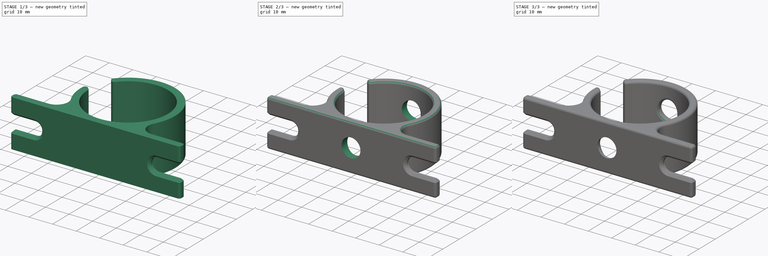
[diagram: build sequence overview — one tinted view per stage of 3, left to right]
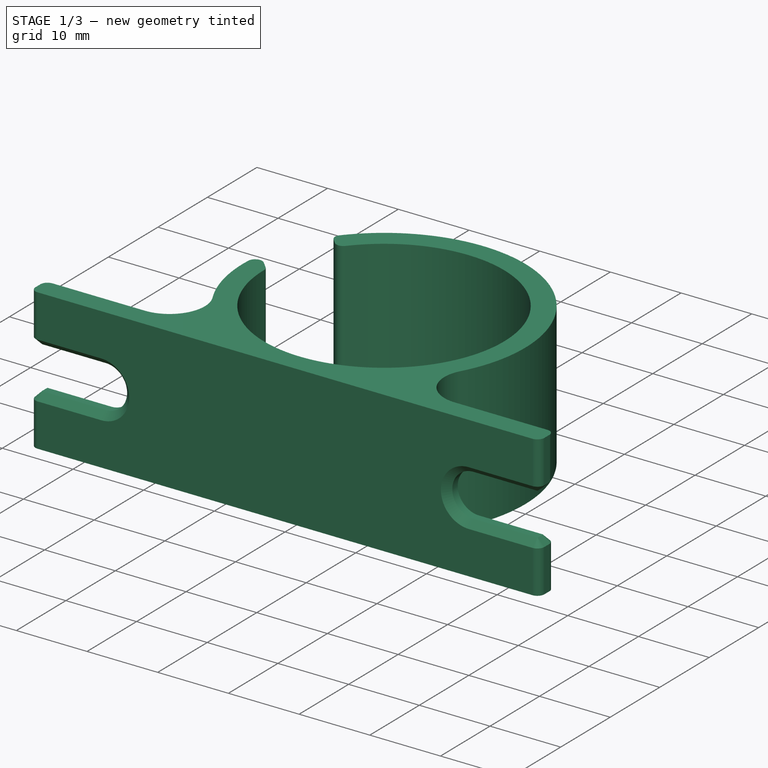
[diagram: stage 1 of 3 — iso view after this stage's code; geometry added in this stage tinted green]
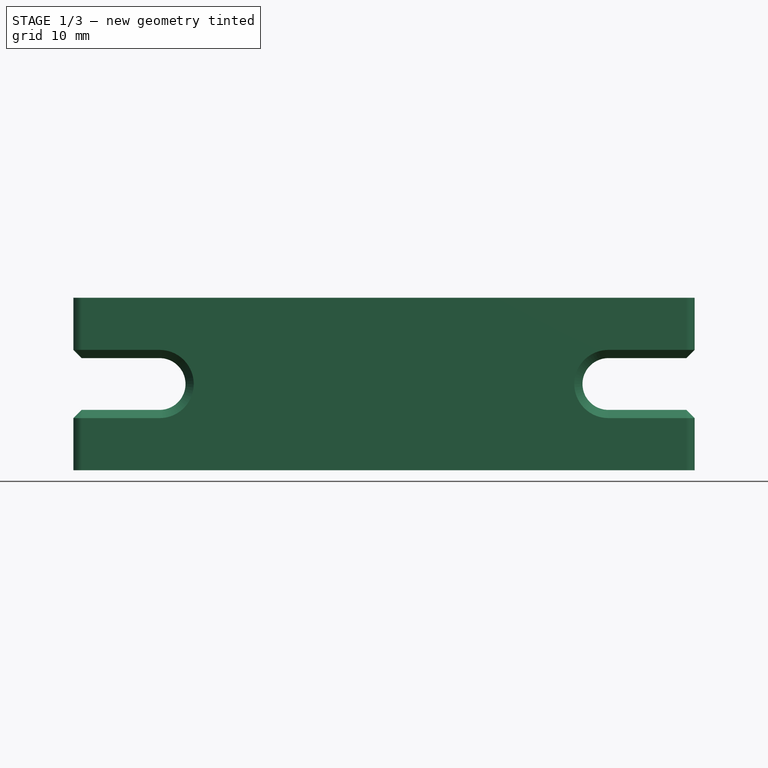
[diagram: stage 1 of 3 — front view after this stage's code; geometry added in this stage tinted green]
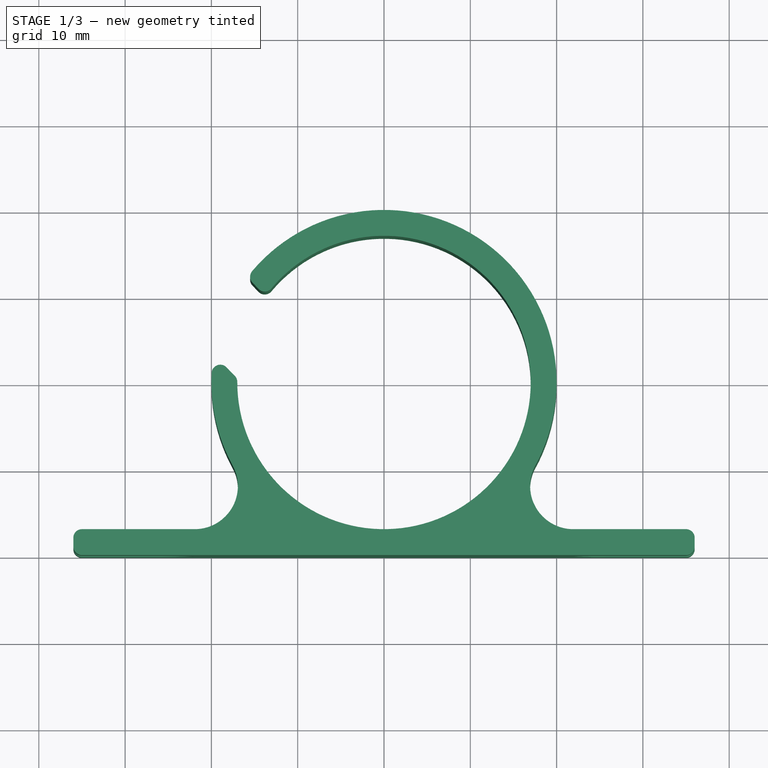
[diagram: stage 1 of 3 — top view after this stage's code; geometry added in this stage tinted green]
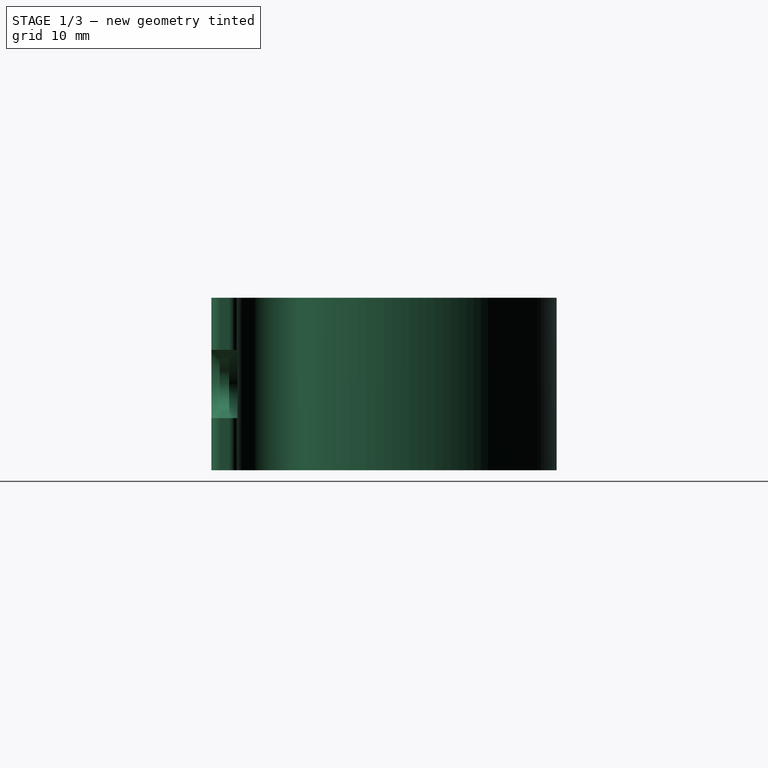
[diagram: stage 1 of 3 — right view after this stage's code; geometry added in this stage tinted green]
FCSTD DOCUMENT  (FreeCAD 0.21R)
Label: passe-cable
License: All rights reserved
LicenseURL: http://en.wikipedia.org/wiki/All_rights_reserved
objects: Sketcher::SketchObject×3, PartDesign::Fillet×3, PartDesign::Pocket×2, PartDesign::Chamfer×2, PartDesign::Pad×1, PartDesign::Body×1
note: 20 computed .brp shape members not serialized (recipe doc carries the construction recipe); baked Part::Feature solids carry a one-line shape summary decoded from their .brp

FEATURE [Sketcher::SketchObject] Sketch
  FullyConstrained = false
  sketch-geometry (20):
    g0: ArcOfCircle CenterX=-35 CenterY=1 CenterZ=0 NormalX=0 NormalY=0 NormalZ=1 AngleXU=0 Radius=1 StartAngle=3.14159 EndAngle=4.71239
    g1: LineSegment StartX=-35 StartY=0 StartZ=0 EndX=35 EndY=0 EndZ=0
    g2: ArcOfCircle CenterX=35 CenterY=1 CenterZ=0 NormalX=0 NormalY=0 NormalZ=1 AngleXU=0 Radius=1 StartAngle=4.71239 EndAngle=6.28319
    g3: ArcOfCircle CenterX=-14.516 CenterY=32.2591 CenterZ=0 NormalX=0 NormalY=0 NormalZ=1 AngleXU=0 Radius=1 StartAngle=2.44029 EndAngle=3.91329
    g4: LineSegment StartX=-14.5318 StartY=30.8414 StartZ=0 EndX=-15.2327 EndY=31.5618 EndZ=0
    g5: ArcOfCircle CenterX=-13.8151 CenterY=31.5388 CenterZ=0 NormalX=0 NormalY=0 NormalZ=1 AngleXU=0 Radius=1 StartAngle=3.91329 EndAngle=5.58733
    g6: ArcOfCircle CenterX=-18.9702 CenterY=21.0632 CenterZ=0 NormalX=0 NormalY=0 NormalZ=1 AngleXU=0 Radius=1 StartAngle=0.7717 EndAngle=3.08561
    g7: ArcOfCircle CenterX=0 CenterY=20 CenterZ=0 NormalX=0 NormalY=0 NormalZ=1 AngleXU=0 Radius=17 StartAngle=3.13793 EndAngle=8.72892
    g8: LineSegment StartX=-17.2832 StartY=20.7632 StartZ=0 EndX=-18.2535 EndY=21.7605 EndZ=0
    g9: ArcOfCircle CenterX=-17.9999 CenterY=20.0659 CenterZ=0 NormalX=0 NormalY=0 NormalZ=1 AngleXU=0 Radius=1 StartAngle=6.27952 EndAngle=7.05489
    g10: LineSegment StartX=36 StartY=1 StartZ=0 EndX=36 EndY=2 EndZ=0
    g11: ArcOfCircle CenterX=35 CenterY=2 CenterZ=0 NormalX=0 NormalY=0 NormalZ=1 AngleXU=0 Radius=1 StartAngle=0 EndAngle=1.5708
    g12: LineSegment StartX=21.9317 StartY=3 StartZ=0 EndX=35 EndY=3 EndZ=0
    g13: ArcOfCircle CenterX=0 CenterY=20 CenterZ=0 NormalX=0 NormalY=0 NormalZ=1 AngleXU=0 Radius=20 StartAngle=5.78253 EndAngle=8.72347
    g14: ArcOfCircle CenterX=21.9317 CenterY=8 CenterZ=0 NormalX=0 NormalY=0 NormalZ=1 AngleXU=0 Radius=5 StartAngle=2.64094 EndAngle=4.71239
    g15: ArcOfCircle CenterX=0 CenterY=20 CenterZ=0 NormalX=0 NormalY=0 NormalZ=1 AngleXU=0 Radius=20 StartAngle=3.08561 EndAngle=3.64225
    g16: ArcOfCircle CenterX=-21.9317 CenterY=8 CenterZ=0 NormalX=0 NormalY=0 NormalZ=1 AngleXU=0 Radius=5 StartAngle=4.71239 EndAngle=6.78384
    g17: LineSegment StartX=-35 StartY=3 StartZ=0 EndX=-21.9317 EndY=3 EndZ=0
    g18: LineSegment StartX=-36 StartY=2 StartZ=0 EndX=-36 EndY=1 EndZ=0
    g19: ArcOfCircle CenterX=-35 CenterY=2 CenterZ=0 NormalX=0 NormalY=0 NormalZ=1 AngleXU=0 Radius=1 StartAngle=1.5708 EndAngle=3.14159
  constraints (20):
    c: Coincident(g0,g18)
    c: Coincident(g18,g19)
    c: Coincident(g0,g1)
    c: Coincident(g17,g19)
    c: Coincident(g16,g17)
    c: Coincident(g6,g15)
    c: Coincident(g6,g8)
    c: Coincident(g15,g16)
    c: Coincident(g8,g9)
    c: Coincident(g7,g9)
    c: Coincident(g3,g13)
    c: Coincident(g3,g4)
    c: Coincident(g4,g5)
    c: Coincident(g5,g7)
    c: Coincident(g13,g14)
    c: Coincident(g12,g14)
    c: Coincident(g1,g2)
    c: Coincident(g11,g12)
    c: Coincident(g2,g10)
    c: Coincident(g10,g11)
FEATURE [PartDesign::Pad] Pad
  Direction = (0,0,1)
  Length = 20
  Length2 = 10
  Profile = -> Sketch
  ReferenceAxis = -> Sketch [N_Axis]
  Type = 0
FEATURE [Sketcher::SketchObject] Sketch001
  ExternalGeometry = -> [Pad]
  FullyConstrained = true
  MapMode = 5
  Placement = pos=(-6e-16,3,0) rot=(0,0.707107,0.707107;3.14159rad)
  Support = -> [Pad]
  sketch-geometry (10):
    g0: ArcOfCircle CenterX=-26 CenterY=10 CenterZ=0 NormalX=0 NormalY=0 NormalZ=1 AngleXU=0 Radius=3 StartAngle=4.71239 EndAngle=7.85398
    g1: ArcOfCircle CenterX=-46 CenterY=10 CenterZ=0 NormalX=0 NormalY=0 NormalZ=1 AngleXU=0 Radius=3 StartAngle=1.5708 EndAngle=4.71239
    g2: LineSegment StartX=-26 StartY=13 StartZ=0 EndX=-46 EndY=13 EndZ=0
    g3: LineSegment StartX=-46 StartY=7 StartZ=0 EndX=-26 EndY=7 EndZ=0
    g4: GeomPoint X=-36 Y=10 Z=0
    g5: GeomPoint X=36 Y=10 Z=0
    g6: ArcOfCircle CenterX=26 CenterY=10 CenterZ=0 NormalX=0 NormalY=0 NormalZ=1 AngleXU=0 Radius=3 StartAngle=1.5708 EndAngle=4.71239
    g7: ArcOfCircle CenterX=46 CenterY=10 CenterZ=0 NormalX=0 NormalY=0 NormalZ=1 AngleXU=0 Radius=3 StartAngle=4.71239 EndAngle=7.85398
    g8: LineSegment StartX=26 StartY=7 StartZ=0 EndX=46 EndY=7 EndZ=0
    g9: LineSegment StartX=46 StartY=13 StartZ=0 EndX=26 EndY=13 EndZ=0
  constraints (22):
    c: Tangent(g0,g2) = -1.5708
    c: Tangent(g2,g1) = -1.5708
    c: Tangent(g1,g3) = -1.5708
    c: Tangent(g3,g0) = -1.5708
    c: Equal(g0,g1)
    c: Horizontal(g2)
    c: Symmetric(g-4,g-4,g4)
    c: Horizontal(g1,g4)
    c: DistanceX(g4,g0) = 10
    c: Distance(g1,g4) = 10
    c: Radius(g0) = 3
    c: Symmetric(g-3,g-3,g5)
    c: Tangent(g6,g8) = -1.5708
    c: Tangent(g8,g7) = -1.5708
    c: Tangent(g7,g9) = -1.5708
    c: Tangent(g9,g6) = -1.5708
    c: Equal(g6,g7)
    c: Horizontal(g6,g5)
    c: Horizontal(g5,g7)
    c: Distance(g6,g5) = 10
    c: Distance(g7,g5) = 10
    c: Radius(g6) = 3
FEATURE [PartDesign::Pocket] Pocket
  BaseFeature = -> Pad
  Direction = (2e-16,-1,2e-16)
  Length = 5
  Length2 = 5
  Profile = -> Sketch001
  ReferenceAxis = -> Sketch001 [N_Axis]
  Type = 1
FEATURE [PartDesign::Chamfer] Chamfer
  Angle = 45
  Base = -> Pocket [Face29,Face26]
  BaseFeature = -> Pocket
  ChamferType = 0
  FlipDirection = false
  Size = 0.95
  Size2 = 1
  SupportTransform = false
  UseAllEdges = false
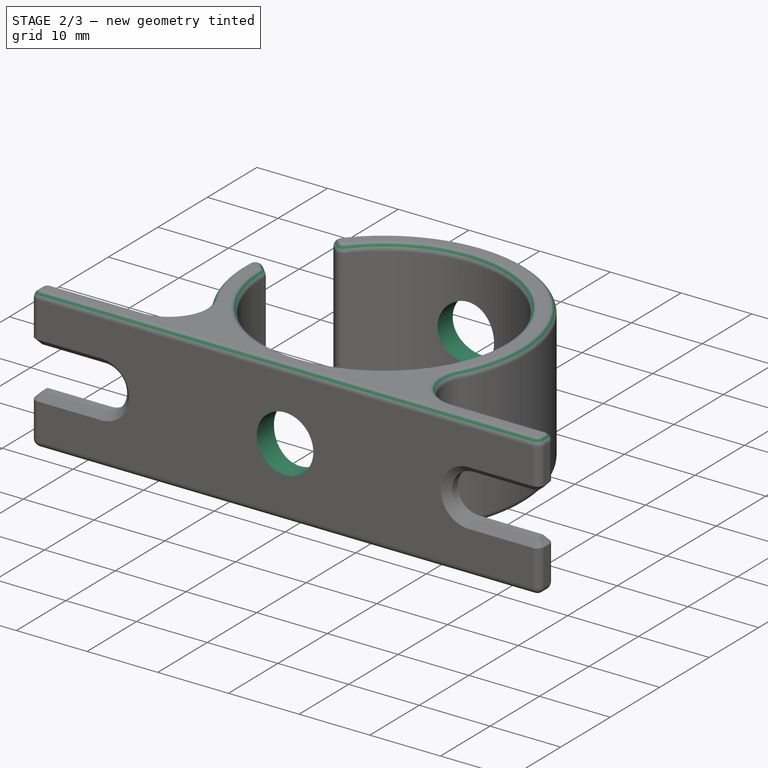
[diagram: stage 2 of 3 — iso view after this stage's code; geometry added in this stage tinted green]
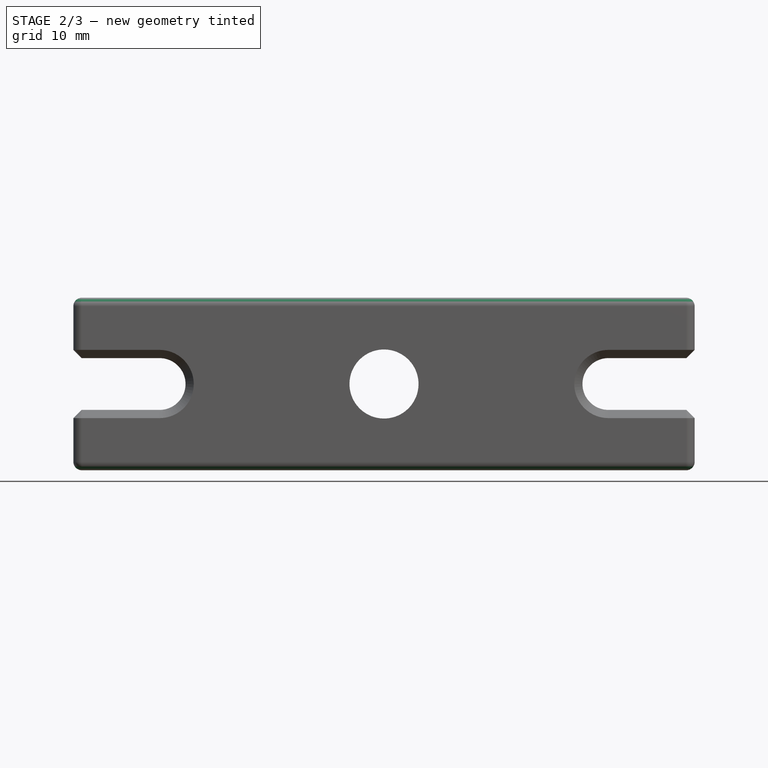
[diagram: stage 2 of 3 — front view after this stage's code; geometry added in this stage tinted green]
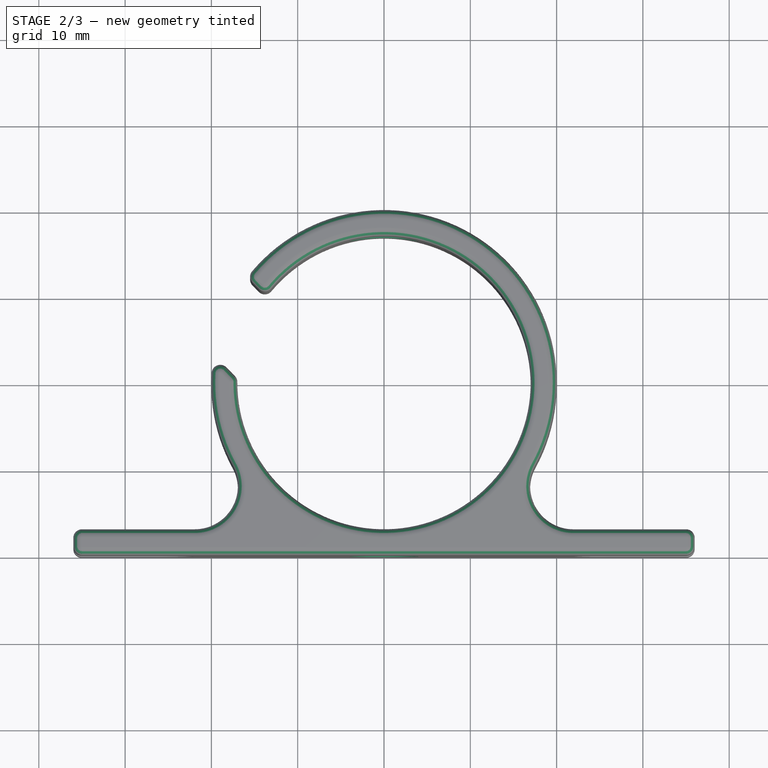
[diagram: stage 2 of 3 — top view after this stage's code; geometry added in this stage tinted green]
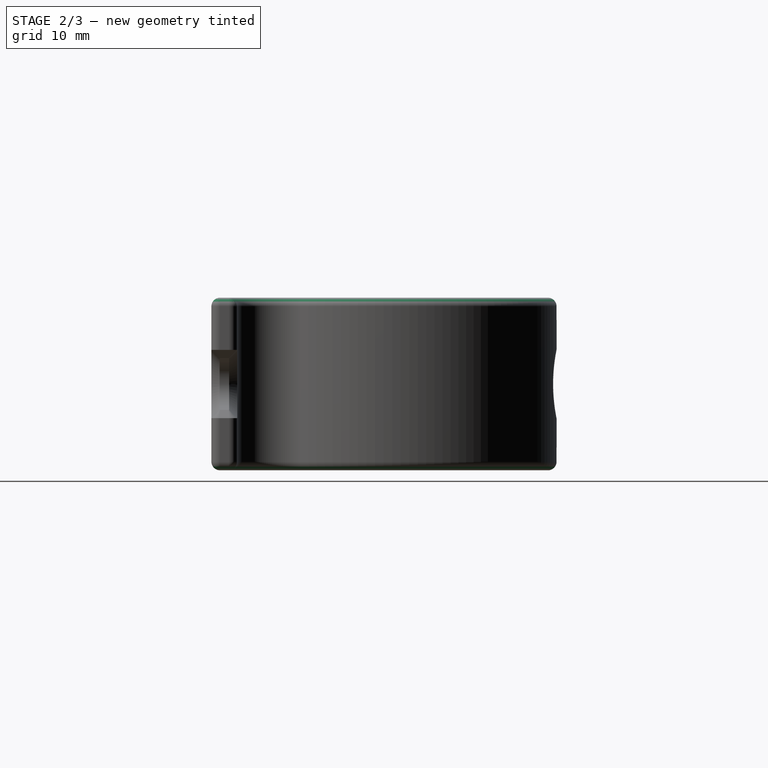
[diagram: stage 2 of 3 — right view after this stage's code; geometry added in this stage tinted green]
FEATURE [PartDesign::Fillet] Fillet
  Base = -> Chamfer [Face28,Face4]
  BaseFeature = -> Chamfer
  Radius = 1
  SupportTransform = false
  UseAllEdges = false
FEATURE [Sketcher::SketchObject] Sketch002
  ExternalGeometry = -> [Fillet]
  FullyConstrained = true
  MapMode = 5
  Placement = pos=(0,0,0) rot=(1,0,0;1.5708rad)
  Support = -> [Fillet]
  sketch-geometry (3):
    g0: LineSegment StartX=-35 StartY=19 StartZ=0 EndX=35 EndY=1 EndZ=0
    g1: GeomPoint X=0 Y=10 Z=0
    g2: Circle CenterX=0 CenterY=10 CenterZ=0 NormalX=0 NormalY=0 NormalZ=1 AngleXU=0 Radius=4
  constraints (6):
    c: Coincident(g0,g-4)
    c: Coincident(g0,g-3)
    c: PointOnObject(g1,g0)
    c: Vertical(g1,g-1)
    c: Coincident(g2,g1)
    c: Diameter(g2) = 8
FEATURE [PartDesign::Pocket] Pocket001
  BaseFeature = -> Fillet
  Direction = (0,1,-2e-16)
  Length = 50
  Length2 = 5
  Profile = -> Sketch002
  ReferenceAxis = -> Sketch002 [N_Axis]
  Type = 0
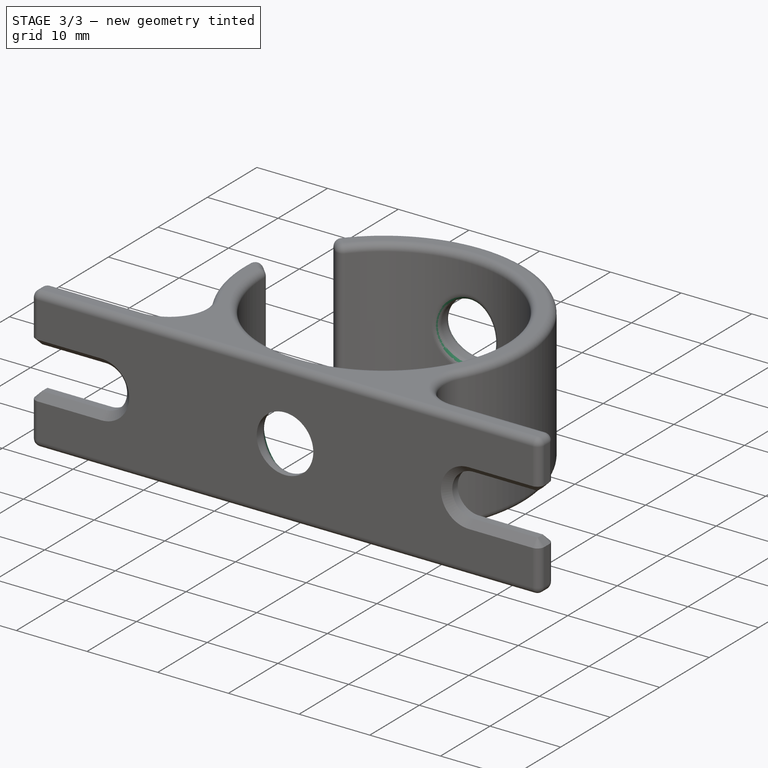
[diagram: stage 3 of 3 — iso view after this stage's code; geometry added in this stage tinted green]
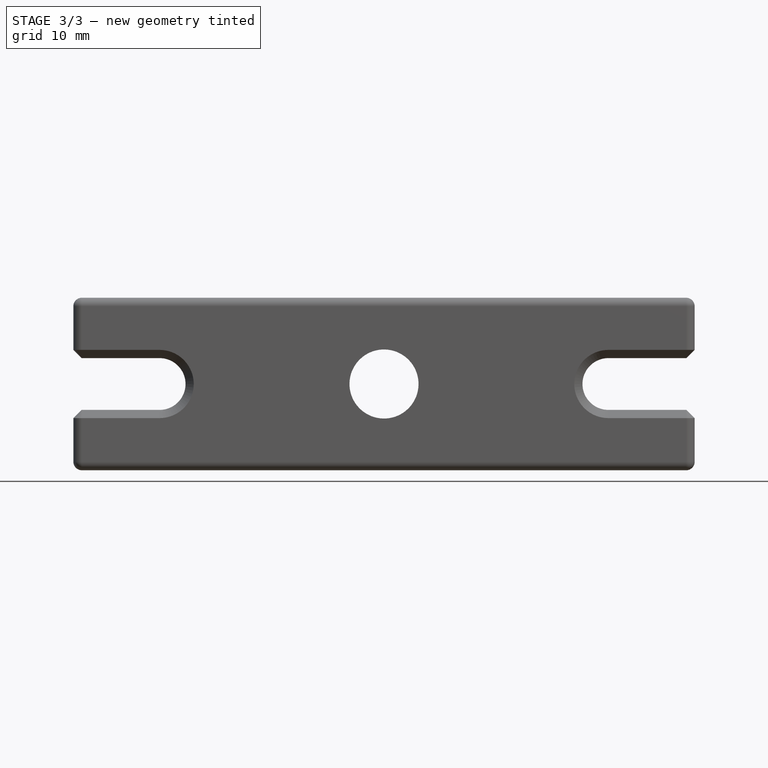
[diagram: stage 3 of 3 — front view after this stage's code; geometry added in this stage tinted green]
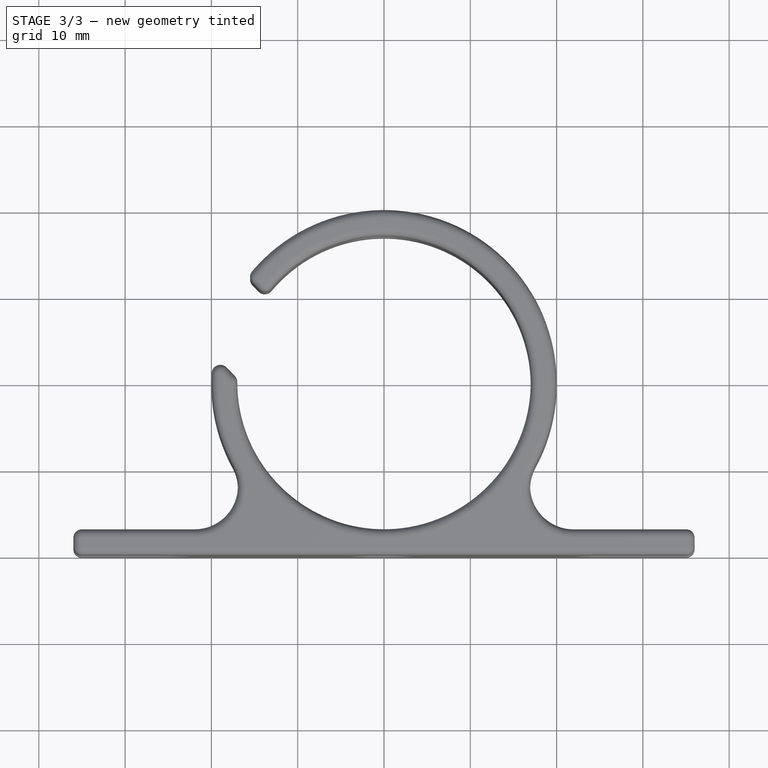
[diagram: stage 3 of 3 — top view after this stage's code; geometry added in this stage tinted green]
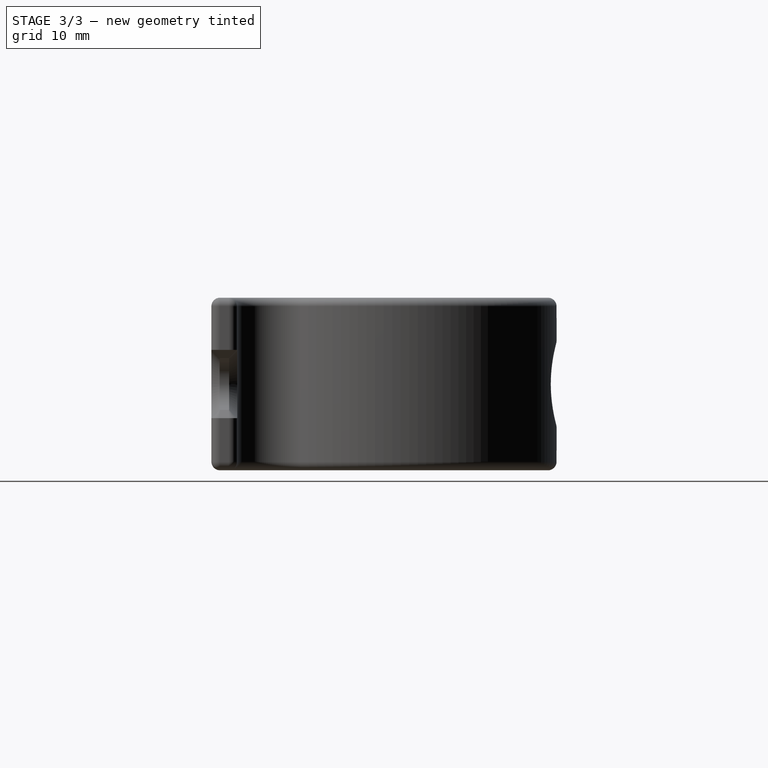
[diagram: stage 3 of 3 — right view after this stage's code; geometry added in this stage tinted green]
FEATURE [PartDesign::Fillet] Fillet001
  Base = -> Pocket001 [Edge191,Edge208]
  BaseFeature = -> Pocket001
  Radius = 1
  SupportTransform = false
  UseAllEdges = false
FEATURE [PartDesign::Chamfer] Chamfer001
  Angle = 45
  Base = -> Fillet001 [Edge6]
  BaseFeature = -> Fillet001
  ChamferType = 0
  FlipDirection = false
  Size = 2
  Size2 = 1
  SupportTransform = false
  UseAllEdges = false
FEATURE [PartDesign::Fillet] Fillet002
  Base = -> Chamfer001 [Edge1,Edge8]
  BaseFeature = -> Chamfer001
  Radius = 1
  SupportTransform = false
  UseAllEdges = false
FEATURE [PartDesign::Body] Body  label="Corps"
  Group = -> [Sketch,Pad,Sketch001,Pocket,Chamfer,Fillet,Sketch002,Pocket001,Fillet001,Chamfer001,Fillet002]
  Origin = -> Origin
  Tip = -> Fillet002
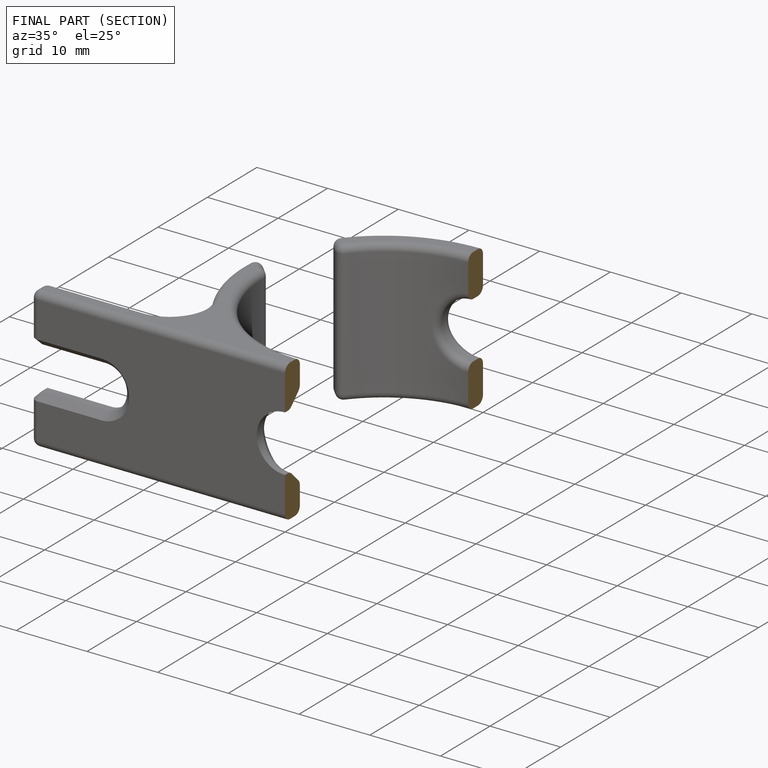
[diagram: finished part — half-section view (interior)]
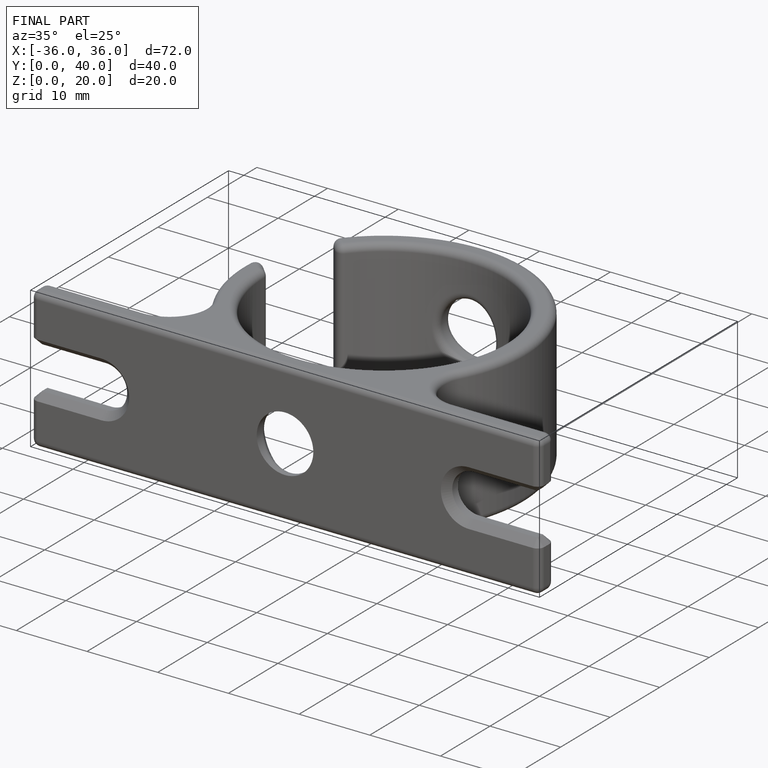
[diagram: finished part — iso view with bounding-box wireframe]
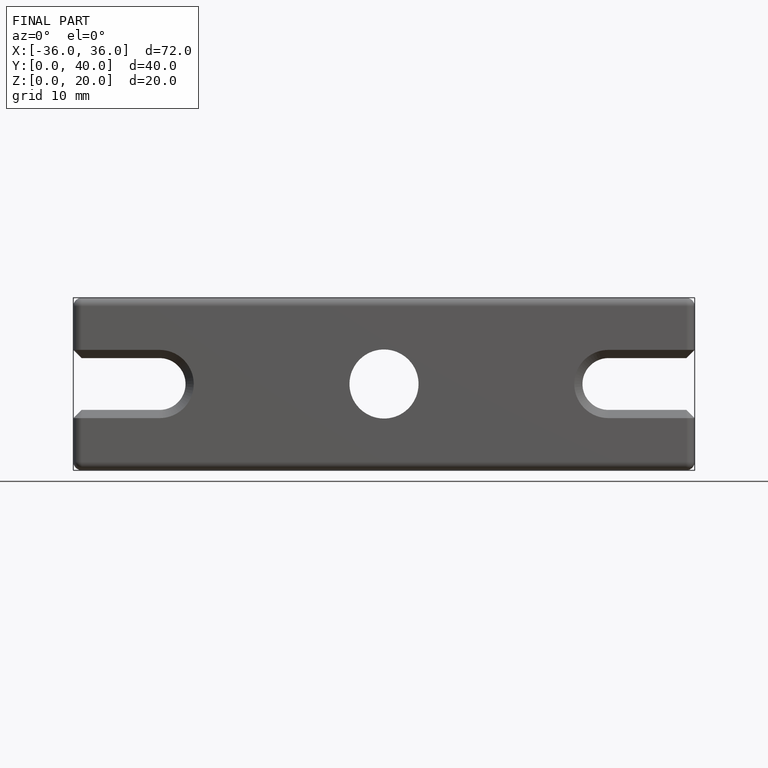
[diagram: finished part — front view with bounding-box wireframe]
